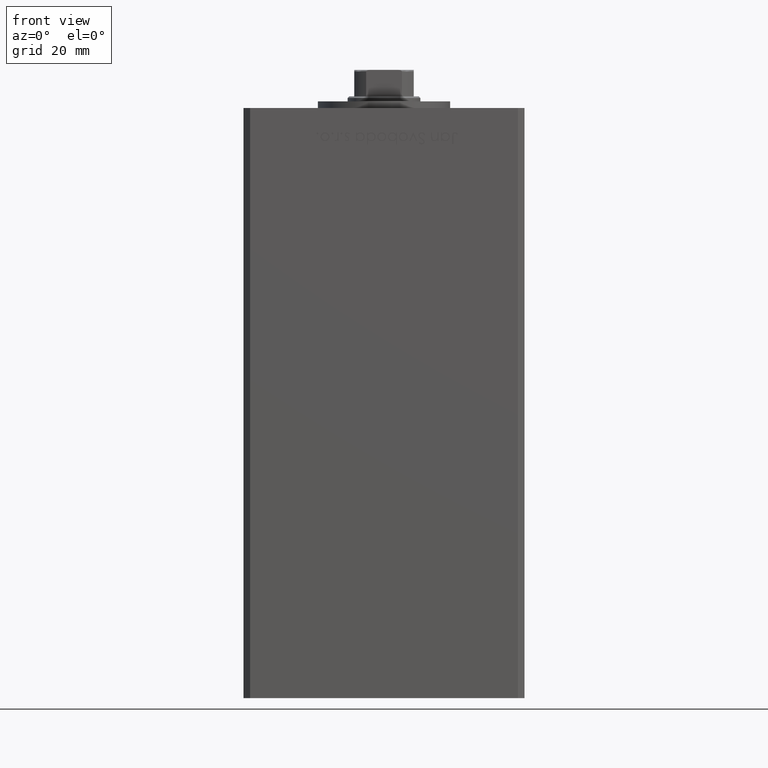
[diagram: clean part render]
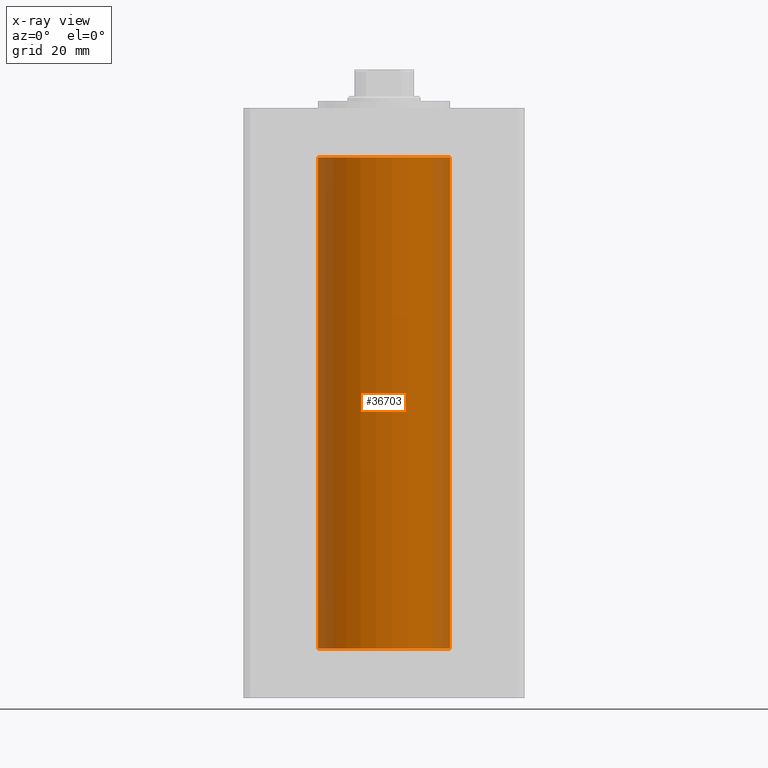
[diagram: x-ray — body ghosted, one internal face saturated and labeled with its STEP entity id]
A machine part, front view, then the same camera in x-ray: the body is ghosted and one INTERNAL B-rep face — a face not visible from any outside direction — is saturated and labeled: STEP entity #36703.
In plain terms, the highlighted cylindrical surface (partial cylindrical patch) has radius 20 mm, axis along (-0, -0, -1).
Its self-contained STEP definition (entity closure, byte-faithful):
#90 = VECTOR ( 'NONE', #17332, 1000.000000000000000 ) ;
#1224 = CARTESIAN_POINT ( 'NONE',  ( -20.00000000000000000, 0.000000000000000000, 148.5000000000000000 ) ) ;
#1382 = CARTESIAN_POINT ( 'NONE',  ( 20.00000000000000000, 2.449293598294706513E-15, 148.5000000000000000 ) ) ;
#3487 = EDGE_CURVE ( 'NONE', #42152, #20717, #22062, .T. ) ;
#4938 = DIRECTION ( 'NONE',  ( -1.000000000000000000, 0.000000000000000000, 0.000000000000000000 ) ) ;
#10365 = ORIENTED_EDGE ( 'NONE', *, *, #47733, .T. ) ;
#11826 = CARTESIAN_POINT ( 'NONE',  ( 0.000000000000000000, 0.000000000000000000, 0.000000000000000000 ) ) ;
#11967 = CARTESIAN_POINT ( 'NONE',  ( -20.00000000000000000, 0.000000000000000000, 0.000000000000000000 ) ) ;
#14083 = ORIENTED_EDGE ( 'NONE', *, *, #38073, .F. ) ;
#14375 = EDGE_CURVE ( 'NONE', #20091, #29639, #51588, .T. ) ;
#17332 = DIRECTION ( 'NONE',  ( -0.000000000000000000, -0.000000000000000000, -1.000000000000000000 ) ) ;
#19051 = ORIENTED_EDGE ( 'NONE', *, *, #14375, .T. ) ;
#20007 = DIRECTION ( 'NONE',  ( 1.000000000000000000, 0.000000000000000000, 0.000000000000000000 ) ) ;
#20091 = VERTEX_POINT ( 'NONE', #1382 ) ;
#20422 = CARTESIAN_POINT ( 'NONE',  ( 20.00000000000000000, 2.449293598294706513E-15, 0.000000000000000000 ) ) ;
#20717 = VERTEX_POINT ( 'NONE', #11967 ) ;
#22062 = LINE ( 'NONE', #1224, #90 ) ;
#22432 = CIRCLE ( 'NONE', #31740, 20.00000000000000000 ) ;
#23690 = ORIENTED_EDGE ( 'NONE', *, *, #3487, .F. ) ;
#24087 = AXIS2_PLACEMENT_3D ( 'NONE', #41101, #28168, #4938 ) ;
#24230 = DIRECTION ( 'NONE',  ( -0.000000000000000000, 0.000000000000000000, 1.000000000000000000 ) ) ;
#24990 = FACE_OUTER_BOUND ( 'NONE', #47987, .T. ) ;
#28168 = DIRECTION ( 'NONE',  ( -0.000000000000000000, -0.000000000000000000, -1.000000000000000000 ) ) ;
#28761 = CARTESIAN_POINT ( 'NONE',  ( -20.00000000000000000, 0.000000000000000000, 148.5000000000000000 ) ) ;
#29639 = VERTEX_POINT ( 'NONE', #20422 ) ;
#31039 = DIRECTION ( 'NONE',  ( -0.000000000000000000, -0.000000000000000000, -1.000000000000000000 ) ) ;
#31740 = AXIS2_PLACEMENT_3D ( 'NONE', #11826, #24230, #20007 ) ;
#31823 = CARTESIAN_POINT ( 'NONE',  ( 20.00000000000000000, 2.449293598294706513E-15, 148.5000000000000000 ) ) ;
#36703 = ADVANCED_FACE ( 'NONE', ( #24990 ), #40842, .F. ) ;
#38073 = EDGE_CURVE ( 'NONE', #20717, #29639, #22432, .T. ) ;
#39282 = CARTESIAN_POINT ( 'NONE',  ( 0.000000000000000000, 0.000000000000000000, 148.5000000000000000 ) ) ;
#39529 = DIRECTION ( 'NONE',  ( 1.000000000000000000, 0.000000000000000000, 0.000000000000000000 ) ) ;
#39665 = CIRCLE ( 'NONE', #41355, 20.00000000000000000 ) ;
#39789 = DIRECTION ( 'NONE',  ( -0.000000000000000000, 0.000000000000000000, 1.000000000000000000 ) ) ;
#40842 = CYLINDRICAL_SURFACE ( 'NONE', #24087, 20.00000000000000000 ) ;
#41101 = CARTESIAN_POINT ( 'NONE',  ( 0.000000000000000000, 0.000000000000000000, 148.5000000000000000 ) ) ;
#41322 = VECTOR ( 'NONE', #31039, 1000.000000000000000 ) ;
#41355 = AXIS2_PLACEMENT_3D ( 'NONE', #39282, #39789, #39529 ) ;
#42152 = VERTEX_POINT ( 'NONE', #28761 ) ;
#47733 = EDGE_CURVE ( 'NONE', #42152, #20091, #39665, .T. ) ;
#47987 = EDGE_LOOP ( 'NONE', ( #10365, #19051, #14083, #23690 ) ) ;
#51588 = LINE ( 'NONE', #31823, #41322 ) ;